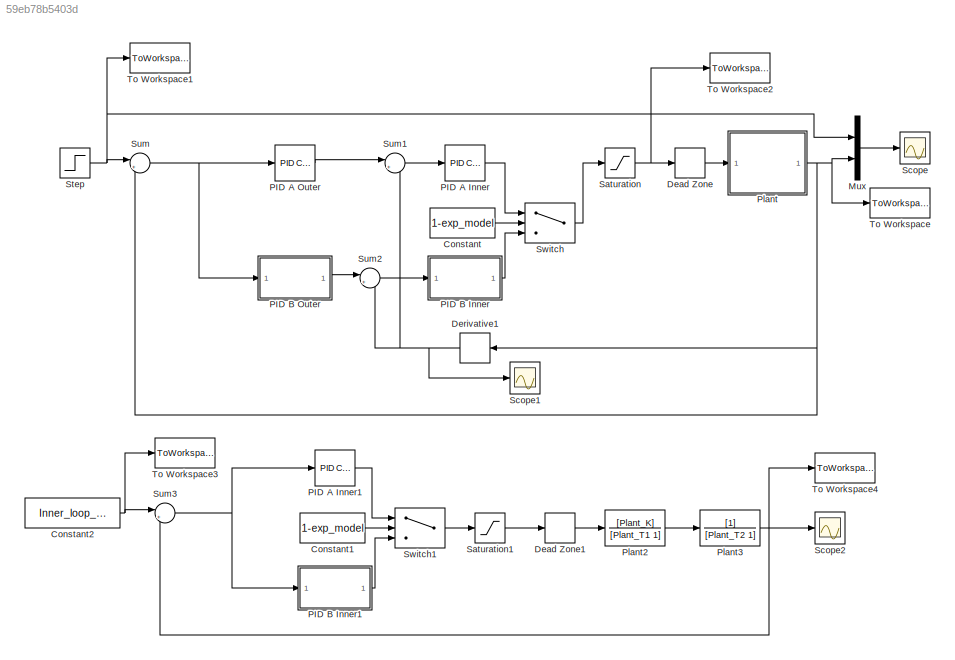
MODEL slx_59eb78b5403d
KIND model
BLOCK [Constant] Constant
  Value = 1-exp_model
BLOCK [Constant] Constant1
  Value = 1-exp_model
BLOCK [Constant] Constant2
  Value = Inner_loop_amp
BLOCK [DeadZone] Dead Zone
  LowerValue = -2
  UpperValue = 2
BLOCK [DeadZone] Dead Zone1
  LowerValue = -2
  UpperValue = 2
BLOCK [Derivative] Derivative1
BLOCK [Mux] Mux
  DisplayOption = bar
  Inputs = 2
  Ports = [2, 1]
BLOCK [Reference] PID A Inner  REF=simulink/Continuous/PID Controller
  AntiWindupMode = none
  Controller = PID
  D = PID_inner(3)
  DOutDataTypeStr = Inherit: Inherit via internal rule
  DOutMax = []
  DOutMin = []
  DParamDataTypeStr = Inherit: Inherit via internal rule
  DParamMax = []
  DParamMin = []
  ExternalReset = none
  FilterContinuousStateAttributes = ''
  FilterMethod = Trapezoidal
  FilterOutDataTypeStr = Inherit: Inherit via internal rule
  FilterOutMax = []
  FilterOutMin = []
  FilterRTWStateStorageClass = Auto
  FilterStateMustResolveToSignalObject = off
  Form = Parallel
  I = PID_inner(2)
  IOutDataTypeStr = Inherit: Inherit via internal rule
  IOutMax = []
  IOutMin = []
  IParamDataTypeStr = Inherit: Inherit via internal rule
  IParamMax = []
  IParamMin = []
  IgnoreLimit = off
  InitialConditionForFilter = 0
  InitialConditionForIntegrator = 0
  InitialConditionSource = internal
  IntegratorContinuousStateAttributes = ''
  IntegratorMethod = Trapezoidal
  IntegratorOutDataTypeStr = Inherit: Inherit via internal rule
  IntegratorOutMax = []
  IntegratorOutMin = []
  IntegratorRTWStateStorageClass = Auto
  IntegratorStateMustResolveToSignalObject = off
  Kb = 1
  KbOutDataTypeStr = Inherit: Inherit via internal rule
  KbOutMax = []
  KbOutMin = []
  KbParamDataTypeStr = Inherit: Inherit via internal rule
  KbParamMax = []
  KbParamMin = []
  Kt = 1
  KtOutDataTypeStr = Inherit: Inherit via internal rule
  KtOutMax = []
  KtOutMin = []
  KtParamDataTypeStr = Inherit: Inherit via internal rule
  KtParamMax = []
  KtParamMin = []
  LimitOutput = off
  LinearizeAsGain = on
  LockScale = off
  LowerSaturationLimit = -inf
  N = 100
  NOutDataTypeStr = Inherit: Inherit via internal rule
  NOutMax = []
  NOutMin = []
  NParamDataTypeStr = Inherit: Inherit via internal rule
  NParamMax = []
  NParamMin = []
  P = PID_inner(1)
  POutDataTypeStr = Inherit: Inherit via internal rule
  POutMax = []
  POutMin = []
  PParamDataTypeStr = Inherit: Inherit via internal rule
  PParamMax = []
  PParamMin = []
  Ports = [1, 1]
  RndMeth = Floor
  SampleTime = 0.002
  SaturateOnIntegerOverflow = off
  SaturationOutDataTypeStr = Inherit: Same as input
  SaturationOutMax = []
  SaturationOutMin = []
  SourceBlock = simulink/Continuous/PID Controller
  SourceType = PID 1dof
  SumAccumDataTypeStr = Inherit: Inherit via internal rule
  SumDAccumDataTypeStr = Inherit: Inherit via internal rule
  SumDOutDataTypeStr = Inherit: Inherit via internal rule
  SumDOutMax = []
  SumDOutMin = []
  SumI1AccumDataTypeStr = Inherit: Inherit via internal rule
  SumI1OutDataTypeStr = Inherit: Inherit via internal rule
  SumI1OutMax = []
  SumI1OutMin = []
  SumI2AccumDataTypeStr = Inherit: Inherit via internal rule
  SumI2OutDataTypeStr = Inherit: Inherit via internal rule
  SumI2OutMax = []
  SumI2OutMin = []
  SumI3AccumDataTypeStr = Inherit: Inherit via internal rule
  SumI3OutDataTypeStr = Inherit: Inherit via internal rule
  SumI3OutMax = []
  SumI3OutMin = []
  SumOutDataTypeStr = Inherit: Inherit via internal rule
  SumOutMax = []
  SumOutMin = []
  TimeDomain = Continuous-time
  TrackingMode = off
  UpperSaturationLimit = inf
  ZeroCross = on
BLOCK [Reference] PID A Inner1  REF=simulink/Continuous/PID Controller
  AntiWindupMode = none
  Controller = PID
  D = PID_inner(3)
  DOutDataTypeStr = Inherit: Inherit via internal rule
  DOutMax = []
  DOutMin = []
  DParamDataTypeStr = Inherit: Inherit via internal rule
  DParamMax = []
  DParamMin = []
  ExternalReset = none
  FilterContinuousStateAttributes = ''
  FilterMethod = Trapezoidal
  FilterOutDataTypeStr = Inherit: Inherit via internal rule
  FilterOutMax = []
  FilterOutMin = []
  FilterRTWStateStorageClass = Auto
  FilterStateMustResolveToSignalObject = off
  Form = Parallel
  I = PID_inner(2)
  IOutDataTypeStr = Inherit: Inherit via internal rule
  IOutMax = []
  IOutMin = []
  IParamDataTypeStr = Inherit: Inherit via internal rule
  IParamMax = []
  IParamMin = []
  IgnoreLimit = off
  InitialConditionForFilter = 0
  InitialConditionForIntegrator = 0
  InitialConditionSource = internal
  IntegratorContinuousStateAttributes = ''
  IntegratorMethod = Trapezoidal
  IntegratorOutDataTypeStr = Inherit: Inherit via internal rule
  IntegratorOutMax = []
  IntegratorOutMin = []
  IntegratorRTWStateStorageClass = Auto
  IntegratorStateMustResolveToSignalObject = off
  Kb = 1
  KbOutDataTypeStr = Inherit: Inherit via internal rule
  KbOutMax = []
  KbOutMin = []
  KbParamDataTypeStr = Inherit: Inherit via internal rule
  KbParamMax = []
  KbParamMin = []
  Kt = 1
  KtOutDataTypeStr = Inherit: Inherit via internal rule
  KtOutMax = []
  KtOutMin = []
  KtParamDataTypeStr = Inherit: Inherit via internal rule
  KtParamMax = []
  KtParamMin = []
  LimitOutput = off
  LinearizeAsGain = on
  LockScale = off
  LowerSaturationLimit = -inf
  N = 100
  NOutDataTypeStr = Inherit: Inherit via internal rule
  NOutMax = []
  NOutMin = []
  NParamDataTypeStr = Inherit: Inherit via internal rule
  NParamMax = []
  NParamMin = []
  P = PID_inner(1)
  POutDataTypeStr = Inherit: Inherit via internal rule
  POutMax = []
  POutMin = []
  PParamDataTypeStr = Inherit: Inherit via internal rule
  PParamMax = []
  PParamMin = []
  Ports = [1, 1]
  RndMeth = Floor
  SampleTime = 0.002
  SaturateOnIntegerOverflow = off
  SaturationOutDataTypeStr = Inherit: Same as input
  SaturationOutMax = []
  SaturationOutMin = []
  SourceBlock = simulink/Continuous/PID Controller
  SourceType = PID 1dof
  SumAccumDataTypeStr = Inherit: Inherit via internal rule
  SumDAccumDataTypeStr = Inherit: Inherit via internal rule
  SumDOutDataTypeStr = Inherit: Inherit via internal rule
  SumDOutMax = []
  SumDOutMin = []
  SumI1AccumDataTypeStr = Inherit: Inherit via internal rule
  SumI1OutDataTypeStr = Inherit: Inherit via internal rule
  SumI1OutMax = []
  SumI1OutMin = []
  SumI2AccumDataTypeStr = Inherit: Inherit via internal rule
  SumI2OutDataTypeStr = Inherit: Inherit via internal rule
  SumI2OutMax = []
  SumI2OutMin = []
  SumI3AccumDataTypeStr = Inherit: Inherit via internal rule
  SumI3OutDataTypeStr = Inherit: Inherit via internal rule
  SumI3OutMax = []
  SumI3OutMin = []
  SumOutDataTypeStr = Inherit: Inherit via internal rule
  SumOutMax = []
  SumOutMin = []
  TimeDomain = Continuous-time
  TrackingMode = off
  UpperSaturationLimit = inf
  ZeroCross = on
BLOCK [Reference] PID A Outer  REF=simulink/Continuous/PID Controller
  AntiWindupMode = none
  Controller = PID
  D = PID_outer(3)
  DOutDataTypeStr = Inherit: Inherit via internal rule
  DOutMax = []
  DOutMin = []
  DParamDataTypeStr = Inherit: Inherit via internal rule
  DParamMax = []
  DParamMin = []
  ExternalReset = none
  FilterContinuousStateAttributes = ''
  FilterMethod = Trapezoidal
  FilterOutDataTypeStr = Inherit: Inherit via internal rule
  FilterOutMax = []
  FilterOutMin = []
  FilterRTWStateStorageClass = Auto
  FilterStateMustResolveToSignalObject = off
  Form = Parallel
  I = PID_outer(2)
  IOutDataTypeStr = Inherit: Inherit via internal rule
  IOutMax = []
  IOutMin = []
  IParamDataTypeStr = Inherit: Inherit via internal rule
  IParamMax = []
  IParamMin = []
  IgnoreLimit = off
  InitialConditionForFilter = 0
  InitialConditionForIntegrator = 0
  InitialConditionSource = internal
  IntegratorContinuousStateAttributes = ''
  IntegratorMethod = Trapezoidal
  IntegratorOutDataTypeStr = Inherit: Inherit via internal rule
  IntegratorOutMax = []
  IntegratorOutMin = []
  IntegratorRTWStateStorageClass = Auto
  IntegratorStateMustResolveToSignalObject = off
  Kb = 1
  KbOutDataTypeStr = Inherit: Inherit via internal rule
  KbOutMax = []
  KbOutMin = []
  KbParamDataTypeStr = Inherit: Inherit via internal rule
  KbParamMax = []
  KbParamMin = []
  Kt = 1
  KtOutDataTypeStr = Inherit: Inherit via internal rule
  KtOutMax = []
  KtOutMin = []
  KtParamDataTypeStr = Inherit: Inherit via internal rule
  KtParamMax = []
  KtParamMin = []
  LimitOutput = off
  LinearizeAsGain = on
  LockScale = off
  LowerSaturationLimit = -inf
  N = 100
  NOutDataTypeStr = Inherit: Inherit via internal rule
  NOutMax = []
  NOutMin = []
  NParamDataTypeStr = Inherit: Inherit via internal rule
  NParamMax = []
  NParamMin = []
  P = PID_outer(1)
  POutDataTypeStr = Inherit: Inherit via internal rule
  POutMax = []
  POutMin = []
  PParamDataTypeStr = Inherit: Inherit via internal rule
  PParamMax = []
  PParamMin = []
  Ports = [1, 1]
  RndMeth = Floor
  SampleTime = 0.002
  SaturateOnIntegerOverflow = off
  SaturationOutDataTypeStr = Inherit: Same as input
  SaturationOutMax = []
  SaturationOutMin = []
  SourceBlock = simulink/Continuous/PID Controller
  SourceType = PID 1dof
  SumAccumDataTypeStr = Inherit: Inherit via internal rule
  SumDAccumDataTypeStr = Inherit: Inherit via internal rule
  SumDOutDataTypeStr = Inherit: Inherit via internal rule
  SumDOutMax = []
  SumDOutMin = []
  SumI1AccumDataTypeStr = Inherit: Inherit via internal rule
  SumI1OutDataTypeStr = Inherit: Inherit via internal rule
  SumI1OutMax = []
  SumI1OutMin = []
  SumI2AccumDataTypeStr = Inherit: Inherit via internal rule
  SumI2OutDataTypeStr = Inherit: Inherit via internal rule
  SumI2OutMax = []
  SumI2OutMin = []
  SumI3AccumDataTypeStr = Inherit: Inherit via internal rule
  SumI3OutDataTypeStr = Inherit: Inherit via internal rule
  SumI3OutMax = []
  SumI3OutMin = []
  SumOutDataTypeStr = Inherit: Inherit via internal rule
  SumOutMax = []
  SumOutMin = []
  TimeDomain = Continuous-time
  TrackingMode = off
  UpperSaturationLimit = inf
  ZeroCross = on
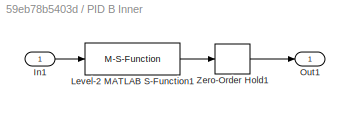
BLOCK [SubSystem] PID B Inner
  FunctionWithSeparateData = off
  MaskHideContents = off
  MinAlgLoopOccurrences = off
  Opaque = off
  Ports = [1, 1]
  PropExecContextOutsideSubsystem = off
  RTWSystemCode = Auto
  RequestExecContextInheritance = off
BLOCK [Inport] PID B Inner/In1
  IconDisplay = Port number
BLOCK [M-S-Function] PID B Inner/Level-2 MATLAB S-Function1
  FunctionName = pid_controller
  Parameters = PID_inner(1),PID_inner(2),PID_inner(3)
  Ports = [1, 1]
BLOCK [Outport] PID B Inner/Out1
  IconDisplay = Port number
BLOCK [ZeroOrderHold] PID B Inner/Zero-Order Hold1
  SampleTime = -1
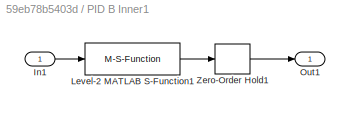
BLOCK [SubSystem] PID B Inner1
  FunctionWithSeparateData = off
  MaskHideContents = off
  MinAlgLoopOccurrences = off
  Opaque = off
  Ports = [1, 1]
  PropExecContextOutsideSubsystem = off
  RTWSystemCode = Auto
  RequestExecContextInheritance = off
BLOCK [Inport] PID B Inner1/In1
  IconDisplay = Port number
BLOCK [M-S-Function] PID B Inner1/Level-2 MATLAB S-Function1
  FunctionName = pid_controller
  Parameters = PID_inner(1),PID_inner(2),PID_inner(3)
  Ports = [1, 1]
BLOCK [Outport] PID B Inner1/Out1
  IconDisplay = Port number
BLOCK [ZeroOrderHold] PID B Inner1/Zero-Order Hold1
  SampleTime = -1
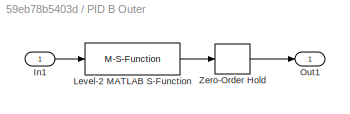
BLOCK [SubSystem] PID B Outer
  FunctionWithSeparateData = off
  MaskHideContents = off
  MinAlgLoopOccurrences = off
  Opaque = off
  Ports = [1, 1]
  PropExecContextOutsideSubsystem = off
  RTWSystemCode = Auto
  RequestExecContextInheritance = off
BLOCK [Inport] PID B Outer/In1
  IconDisplay = Port number
BLOCK [M-S-Function] PID B Outer/Level-2 MATLAB S-Function
  FunctionName = pid_controller
  Parameters = PID_outer(1),PID_outer(2),PID_outer(3)
  Ports = [1, 1]
BLOCK [Outport] PID B Outer/Out1
  IconDisplay = Port number
BLOCK [ZeroOrderHold] PID B Outer/Zero-Order Hold
  SampleTime = -1
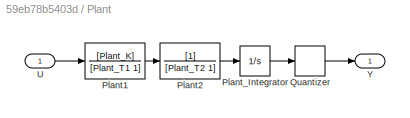
BLOCK [SubSystem] Plant
  FunctionWithSeparateData = off
  MaskHideContents = off
  MinAlgLoopOccurrences = off
  Opaque = off
  Ports = [1, 1]
  PropExecContextOutsideSubsystem = off
  RTWSystemCode = Auto
  RequestExecContextInheritance = off
BLOCK [TransferFcn] Plant/Plant1
  Denominator = [Plant_T1 1]
  Numerator = [Plant_K]
BLOCK [TransferFcn] Plant/Plant2
  Denominator = [Plant_T2 1]
BLOCK [Integrator] Plant/Plant_Integrator
  Ports = [1, 1]
BLOCK [Quantizer] Plant/Quantizer
  QuantizationInterval = 0.005
BLOCK [Inport] Plant/U
  IconDisplay = Signal name
BLOCK [Outport] Plant/Y
  IconDisplay = Signal name
BLOCK [TransferFcn] Plant2
  Denominator = [Plant_T1 1]
  Numerator = [Plant_K]
BLOCK [TransferFcn] Plant3
  Denominator = [Plant_T2 1]
BLOCK [Saturate] Saturation
  InputPortMap = u0
  LowerLimit = -19.2
  Ports = [1, 1]
  UpperLimit = 19.2
BLOCK [Saturate] Saturation1
  InputPortMap = u0
  LowerLimit = -19.2
  Ports = [1, 1]
  UpperLimit = 19.2
BLOCK [Scope] Scope
  DataFormat = StructureWithTime
  Floating = off
  LimitDataPoints = off
  NumInputPorts = 1
  Ports = [1]
  SampleTime = 0
  ShowLegends = off
BLOCK [Scope] Scope1
  DataFormat = StructureWithTime
  Floating = off
  LimitDataPoints = off
  NumInputPorts = 1
  Ports = [1]
  SampleTime = 0
  SaveName = ScopeData1
  ShowLegends = off
BLOCK [Scope] Scope2
  DataFormat = StructureWithTime
  Floating = off
  LimitDataPoints = off
  NumInputPorts = 1
  Ports = [1]
  SampleTime = 0
  SaveName = ScopeData2
  ShowLegends = off
BLOCK [Step] Step
  After = 60
  SampleTime = 0
  Time = simulink_start_time
BLOCK [Sum] Sum
  IconShape = round
  InputSameDT = off
  Inputs = |+-
  OutDataTypeStr = Inherit: Inherit via internal rule
  Ports = [2, 1]
  SaturateOnIntegerOverflow = off
BLOCK [Sum] Sum1
  IconShape = round
  InputSameDT = off
  Inputs = |+-
  OutDataTypeStr = Inherit: Inherit via internal rule
  Ports = [2, 1]
  SaturateOnIntegerOverflow = off
BLOCK [Sum] Sum2
  IconShape = round
  InputSameDT = off
  Inputs = |+-
  OutDataTypeStr = Inherit: Inherit via internal rule
  Ports = [2, 1]
  SaturateOnIntegerOverflow = off
BLOCK [Sum] Sum3
  IconShape = round
  InputSameDT = off
  Inputs = |+-
  OutDataTypeStr = Inherit: Inherit via internal rule
  Ports = [2, 1]
  SaturateOnIntegerOverflow = off
BLOCK [Switch] Switch
  Criteria = u2 ~= 0
  InputSameDT = off
  SaturateOnIntegerOverflow = off
BLOCK [Switch] Switch1
  Criteria = u2 ~= 0
  InputSameDT = off
  SaturateOnIntegerOverflow = off
BLOCK [ToWorkspace] To Workspace
  MaxDataPoints = inf
  Ports = [1]
  SampleTime = -1
  VariableName = y
BLOCK [ToWorkspace] To Workspace1
  MaxDataPoints = inf
  Ports = [1]
  SampleTime = -1
  VariableName = r
BLOCK [ToWorkspace] To Workspace2
  MaxDataPoints = inf
  Ports = [1]
  SampleTime = -1
  VariableName = u
BLOCK [ToWorkspace] To Workspace3
  MaxDataPoints = inf
  Ports = [1]
  SampleTime = -1
  VariableName = r_in
BLOCK [ToWorkspace] To Workspace4
  MaxDataPoints = inf
  Ports = [1]
  SampleTime = -1
  VariableName = y_in
LINE Constant1:1 -> Switch1:2
NET Constant2:1 -> Sum3:1, To Workspace3:1
LINE Constant:1 -> Switch:2
LINE Dead Zone1:1 -> Plant2:1
LINE Dead Zone:1 -> Plant:1
NET Derivative1:1 -> Scope1:1, Sum1:2, Sum2:2
LINE Mux:1 -> Scope:1
LINE PID A Inner1:1 -> Switch1:1
LINE PID A Inner:1 -> Switch:1
LINE PID A Outer:1 -> Sum1:1
LINE PID B Inner/In1:1 -> PID B Inner/Level-2 MATLAB S-Function1:1
LINE PID B Inner/Level-2 MATLAB S-Function1:1 -> PID B Inner/Zero-Order Hold1:1
LINE PID B Inner/Zero-Order Hold1:1 -> PID B Inner/Out1:1
LINE PID B Inner1/In1:1 -> PID B Inner1/Level-2 MATLAB S-Function1:1
LINE PID B Inner1/Level-2 MATLAB S-Function1:1 -> PID B Inner1/Zero-Order Hold1:1
LINE PID B Inner1/Zero-Order Hold1:1 -> PID B Inner1/Out1:1
LINE PID B Inner1:1 -> Switch1:3
LINE PID B Inner:1 -> Switch:3
LINE PID B Outer/In1:1 -> PID B Outer/Level-2 MATLAB S-Function:1
LINE PID B Outer/Level-2 MATLAB S-Function:1 -> PID B Outer/Zero-Order Hold:1
LINE PID B Outer/Zero-Order Hold:1 -> PID B Outer/Out1:1
LINE PID B Outer:1 -> Sum2:1
LINE Plant/Plant1:1 -> Plant/Plant2:1
LINE Plant/Plant2:1 -> Plant/Plant_Integrator:1
LINE Plant/Plant_Integrator:1 -> Plant/Quantizer:1
LINE Plant/Quantizer:1 -> Plant/Y:1
LINE Plant/U:1 -> Plant/Plant1:1
LINE Plant2:1 -> Plant3:1
NET Plant3:1 -> Scope2:1, Sum3:2, To Workspace4:1
NET Plant:1 -> Derivative1:1, Mux:2, Sum:2, To Workspace:1
LINE Saturation1:1 -> Dead Zone1:1
NET Saturation:1 -> Dead Zone:1, To Workspace2:1
NET Step:1 -> Mux:1, Sum:1, To Workspace1:1
LINE Sum1:1 -> PID A Inner:1
LINE Sum2:1 -> PID B Inner:1
NET Sum3:1 -> PID A Inner1:1, PID B Inner1:1
NET Sum:1 -> PID A Outer:1, PID B Outer:1
LINE Switch1:1 -> Saturation1:1
LINE Switch:1 -> Saturation:1
note: NET lines group one-source signal fan-out (src -> all destinations, sorted); 1:1 wires keep LINE
